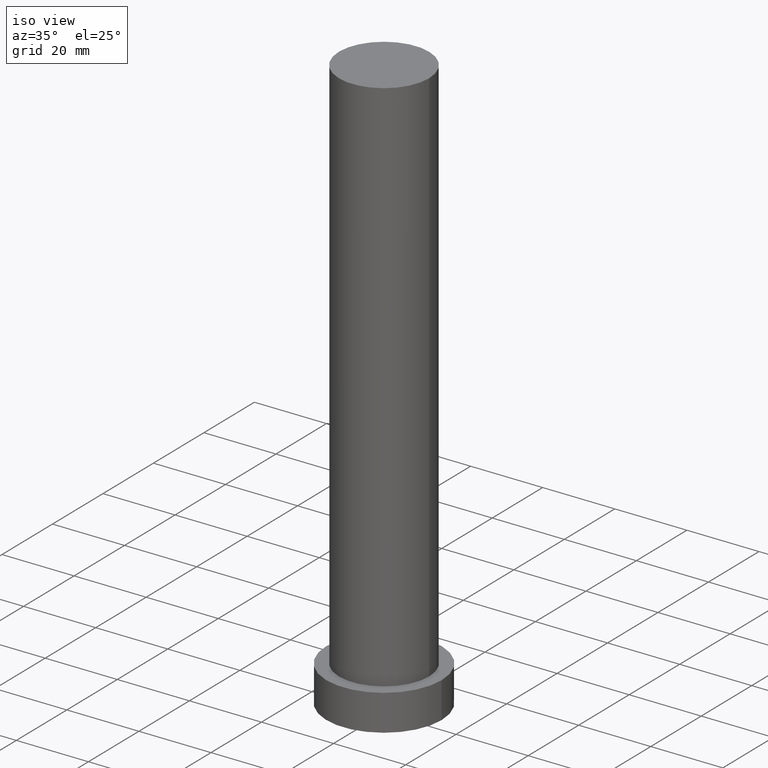
[diagram: clean part render]
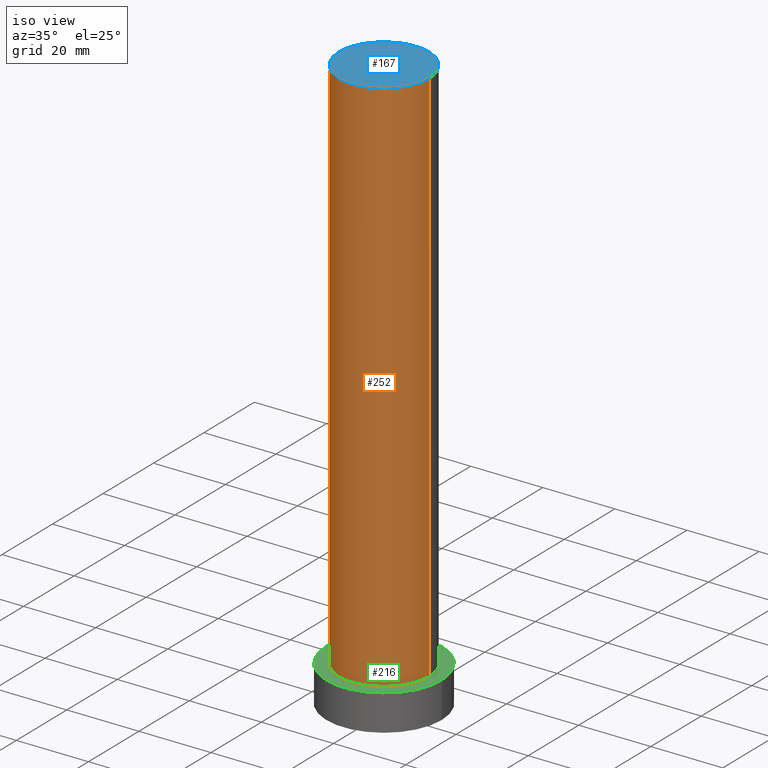
[diagram: same view with three faces highlighted in distinct colors, each labeled with its STEP entity id]
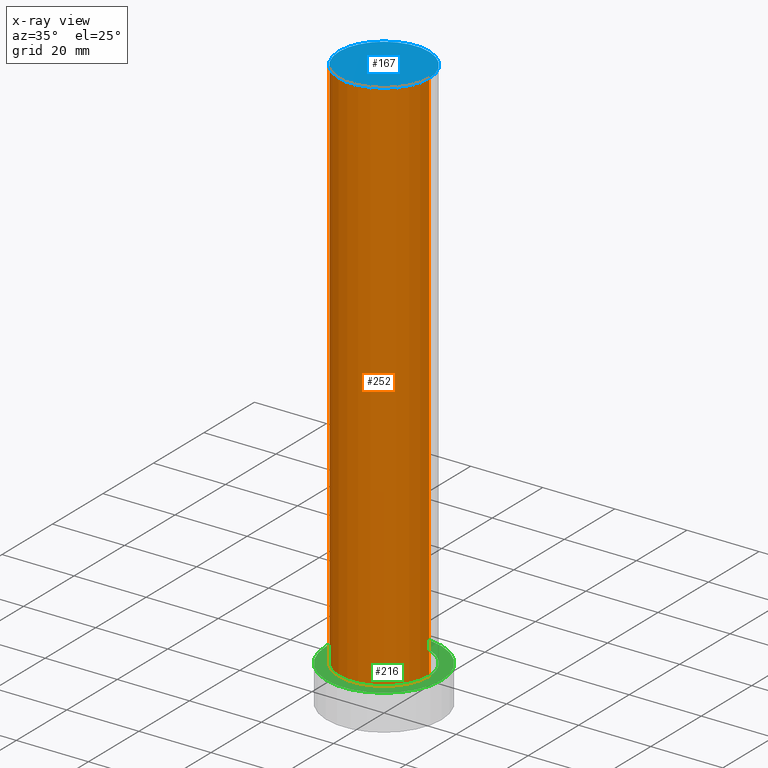
[diagram: x-ray of the same camera — body ghosted, the three highlighted faces saturated]
A machine part, iso view with three faces highlighted in distinct colors.
The next image is the same camera in x-ray (body ghosted, the three faces saturated) — at least one of them is partly hidden behind the body in this view.
Their STEP definitions:

[orange] entity #252 — the highlighted cylindrical surface (partial cylindrical patch) has radius 12.5 mm, axis along (-0, -0, -1).
#8 = CARTESIAN_POINT ( 'NONE',  ( -12.50000000000000000, 0.000000000000000000, 10.00000000000000000 ) ) ;
#16 = DIRECTION ( 'NONE',  ( 1.000000000000000000, 0.000000000000000000, 0.000000000000000000 ) ) ;
#20 = ORIENTED_EDGE ( 'NONE', *, *, #250, .F. ) ;
#22 = LINE ( 'NONE', #64, #187 ) ;
#23 = EDGE_LOOP ( 'NONE', ( #99, #20, #197, #85 ) ) ;
#26 = DIRECTION ( 'NONE',  ( 1.000000000000000000, 0.000000000000000000, 0.000000000000000000 ) ) ;
#28 = EDGE_CURVE ( 'NONE', #81, #57, #235, .T. ) ;
#40 = DIRECTION ( 'NONE',  ( 0.000000000000000000, 0.000000000000000000, 1.000000000000000000 ) ) ;
#57 = VERTEX_POINT ( 'NONE', #110 ) ;
#64 = CARTESIAN_POINT ( 'NONE',  ( 12.50000000000000000, 1.530808498934191521E-15, 160.0000000000000000 ) ) ;
#69 = DIRECTION ( 'NONE',  ( -1.000000000000000000, 0.000000000000000000, 0.000000000000000000 ) ) ;
#75 = LINE ( 'NONE', #180, #135 ) ;
#81 = VERTEX_POINT ( 'NONE', #8 ) ;
#82 = CYLINDRICAL_SURFACE ( 'NONE', #221, 12.50000000000000000 ) ;
#85 = ORIENTED_EDGE ( 'NONE', *, *, #28, .T. ) ;
#97 = EDGE_CURVE ( 'NONE', #214, #81, #75, .T. ) ;
#99 = ORIENTED_EDGE ( 'NONE', *, *, #185, .F. ) ;
#110 = CARTESIAN_POINT ( 'NONE',  ( 12.50000000000000000, 1.530808498934191521E-15, 10.00000000000000000 ) ) ;
#116 = DIRECTION ( 'NONE',  ( -0.000000000000000000, -0.000000000000000000, -1.000000000000000000 ) ) ;
#117 = CIRCLE ( 'NONE', #188, 12.50000000000000000 ) ;
#119 = CARTESIAN_POINT ( 'NONE',  ( -12.50000000000000000, 0.000000000000000000, 160.0000000000000000 ) ) ;
#122 = VERTEX_POINT ( 'NONE', #129 ) ;
#129 = CARTESIAN_POINT ( 'NONE',  ( 12.50000000000000000, 1.530808498934191521E-15, 160.0000000000000000 ) ) ;
#132 = DIRECTION ( 'NONE',  ( -0.000000000000000000, -0.000000000000000000, -1.000000000000000000 ) ) ;
#135 = VECTOR ( 'NONE', #160, 1000.000000000000000 ) ;
#147 = CARTESIAN_POINT ( 'NONE',  ( 0.000000000000000000, 0.000000000000000000, 160.0000000000000000 ) ) ;
#160 = DIRECTION ( 'NONE',  ( -0.000000000000000000, -0.000000000000000000, -1.000000000000000000 ) ) ;
#163 = AXIS2_PLACEMENT_3D ( 'NONE', #171, #224, #26 ) ;
#171 = CARTESIAN_POINT ( 'NONE',  ( 0.000000000000000000, 0.000000000000000000, 10.00000000000000000 ) ) ;
#172 = FACE_OUTER_BOUND ( 'NONE', #23, .T. ) ;
#180 = CARTESIAN_POINT ( 'NONE',  ( -12.50000000000000000, 0.000000000000000000, 160.0000000000000000 ) ) ;
#185 = EDGE_CURVE ( 'NONE', #122, #57, #22, .T. ) ;
#187 = VECTOR ( 'NONE', #116, 1000.000000000000000 ) ;
#188 = AXIS2_PLACEMENT_3D ( 'NONE', #147, #40, #16 ) ;
#197 = ORIENTED_EDGE ( 'NONE', *, *, #97, .T. ) ;
#214 = VERTEX_POINT ( 'NONE', #119 ) ;
#221 = AXIS2_PLACEMENT_3D ( 'NONE', #244, #132, #69 ) ;
#224 = DIRECTION ( 'NONE',  ( 0.000000000000000000, 0.000000000000000000, 1.000000000000000000 ) ) ;
#235 = CIRCLE ( 'NONE', #163, 12.50000000000000000 ) ;
#244 = CARTESIAN_POINT ( 'NONE',  ( 0.000000000000000000, 0.000000000000000000, 160.0000000000000000 ) ) ;
#250 = EDGE_CURVE ( 'NONE', #214, #122, #117, .T. ) ;
#252 = ADVANCED_FACE ( 'NONE', ( #172 ), #82, .T. ) ;

[blue] entity #167 — the highlighted planar face has unit normal (0, 0, 1).
#14 = DIRECTION ( 'NONE',  ( 1.000000000000000000, 0.000000000000000000, -0.000000000000000000 ) ) ;
#16 = DIRECTION ( 'NONE',  ( 1.000000000000000000, 0.000000000000000000, 0.000000000000000000 ) ) ;
#36 = CARTESIAN_POINT ( 'NONE',  ( 0.000000000000000000, 0.000000000000000000, 160.0000000000000000 ) ) ;
#39 = DIRECTION ( 'NONE',  ( 1.000000000000000000, 0.000000000000000000, 0.000000000000000000 ) ) ;
#40 = DIRECTION ( 'NONE',  ( 0.000000000000000000, 0.000000000000000000, 1.000000000000000000 ) ) ;
#53 = AXIS2_PLACEMENT_3D ( 'NONE', #36, #121, #14 ) ;
#80 = ORIENTED_EDGE ( 'NONE', *, *, #207, .T. ) ;
#96 = CARTESIAN_POINT ( 'NONE',  ( 0.000000000000000000, 0.000000000000000000, 160.0000000000000000 ) ) ;
#117 = CIRCLE ( 'NONE', #188, 12.50000000000000000 ) ;
#119 = CARTESIAN_POINT ( 'NONE',  ( -12.50000000000000000, 0.000000000000000000, 160.0000000000000000 ) ) ;
#121 = DIRECTION ( 'NONE',  ( 0.000000000000000000, 0.000000000000000000, 1.000000000000000000 ) ) ;
#122 = VERTEX_POINT ( 'NONE', #129 ) ;
#129 = CARTESIAN_POINT ( 'NONE',  ( 12.50000000000000000, 1.530808498934191521E-15, 160.0000000000000000 ) ) ;
#143 = FACE_OUTER_BOUND ( 'NONE', #241, .T. ) ;
#147 = CARTESIAN_POINT ( 'NONE',  ( 0.000000000000000000, 0.000000000000000000, 160.0000000000000000 ) ) ;
#161 = ORIENTED_EDGE ( 'NONE', *, *, #250, .T. ) ;
#167 = ADVANCED_FACE ( 'NONE', ( #143 ), #213, .T. ) ;
#182 = CIRCLE ( 'NONE', #204, 12.50000000000000000 ) ;
#188 = AXIS2_PLACEMENT_3D ( 'NONE', #147, #40, #16 ) ;
#204 = AXIS2_PLACEMENT_3D ( 'NONE', #96, #231, #39 ) ;
#207 = EDGE_CURVE ( 'NONE', #122, #214, #182, .T. ) ;
#213 = PLANE ( 'NONE',  #53 ) ;
#214 = VERTEX_POINT ( 'NONE', #119 ) ;
#231 = DIRECTION ( 'NONE',  ( 0.000000000000000000, 0.000000000000000000, 1.000000000000000000 ) ) ;
#241 = EDGE_LOOP ( 'NONE', ( #161, #80 ) ) ;
#250 = EDGE_CURVE ( 'NONE', #214, #122, #117, .T. ) ;

[green] entity #216 — the highlighted planar face has unit normal (0, 0, 1).
#3 = CARTESIAN_POINT ( 'NONE',  ( -16.00000000000000000, 0.000000000000000000, 10.00000000000000000 ) ) ;
#8 = CARTESIAN_POINT ( 'NONE',  ( -12.50000000000000000, 0.000000000000000000, 10.00000000000000000 ) ) ;
#13 = EDGE_LOOP ( 'NONE', ( #60, #142 ) ) ;
#18 = CIRCLE ( 'NONE', #55, 16.00000000000000000 ) ;
#25 = EDGE_CURVE ( 'NONE', #170, #151, #18, .T. ) ;
#26 = DIRECTION ( 'NONE',  ( 1.000000000000000000, 0.000000000000000000, 0.000000000000000000 ) ) ;
#28 = EDGE_CURVE ( 'NONE', #81, #57, #235, .T. ) ;
#37 = CIRCLE ( 'NONE', #238, 16.00000000000000000 ) ;
#55 = AXIS2_PLACEMENT_3D ( 'NONE', #71, #87, #155 ) ;
#56 = DIRECTION ( 'NONE',  ( 1.000000000000000000, 0.000000000000000000, 0.000000000000000000 ) ) ;
#57 = VERTEX_POINT ( 'NONE', #110 ) ;
#58 = DIRECTION ( 'NONE',  ( 1.000000000000000000, 0.000000000000000000, -0.000000000000000000 ) ) ;
#59 = DIRECTION ( 'NONE',  ( 0.000000000000000000, 0.000000000000000000, 1.000000000000000000 ) ) ;
#60 = ORIENTED_EDGE ( 'NONE', *, *, #247, .T. ) ;
#71 = CARTESIAN_POINT ( 'NONE',  ( 0.000000000000000000, 0.000000000000000000, 10.00000000000000000 ) ) ;
#77 = CARTESIAN_POINT ( 'NONE',  ( 0.000000000000000000, 0.000000000000000000, 10.00000000000000000 ) ) ;
#81 = VERTEX_POINT ( 'NONE', #8 ) ;
#87 = DIRECTION ( 'NONE',  ( 0.000000000000000000, 0.000000000000000000, 1.000000000000000000 ) ) ;
#90 = AXIS2_PLACEMENT_3D ( 'NONE', #77, #98, #58 ) ;
#98 = DIRECTION ( 'NONE',  ( 0.000000000000000000, 0.000000000000000000, 1.000000000000000000 ) ) ;
#103 = CARTESIAN_POINT ( 'NONE',  ( 16.00000000000000000, 1.959434878635765131E-15, 10.00000000000000000 ) ) ;
#109 = EDGE_CURVE ( 'NONE', #57, #81, #211, .T. ) ;
#110 = CARTESIAN_POINT ( 'NONE',  ( 12.50000000000000000, 1.530808498934191521E-15, 10.00000000000000000 ) ) ;
#118 = FACE_BOUND ( 'NONE', #223, .T. ) ;
#140 = AXIS2_PLACEMENT_3D ( 'NONE', #232, #59, #56 ) ;
#142 = ORIENTED_EDGE ( 'NONE', *, *, #25, .T. ) ;
#151 = VERTEX_POINT ( 'NONE', #3 ) ;
#155 = DIRECTION ( 'NONE',  ( 1.000000000000000000, 0.000000000000000000, 0.000000000000000000 ) ) ;
#163 = AXIS2_PLACEMENT_3D ( 'NONE', #171, #224, #26 ) ;
#168 = ORIENTED_EDGE ( 'NONE', *, *, #28, .F. ) ;
#170 = VERTEX_POINT ( 'NONE', #103 ) ;
#171 = CARTESIAN_POINT ( 'NONE',  ( 0.000000000000000000, 0.000000000000000000, 10.00000000000000000 ) ) ;
#181 = CARTESIAN_POINT ( 'NONE',  ( 0.000000000000000000, 0.000000000000000000, 10.00000000000000000 ) ) ;
#192 = PLANE ( 'NONE',  #90 ) ;
#194 = FACE_OUTER_BOUND ( 'NONE', #13, .T. ) ;
#202 = DIRECTION ( 'NONE',  ( 0.000000000000000000, 0.000000000000000000, 1.000000000000000000 ) ) ;
#211 = CIRCLE ( 'NONE', #140, 12.50000000000000000 ) ;
#212 = ORIENTED_EDGE ( 'NONE', *, *, #109, .F. ) ;
#216 = ADVANCED_FACE ( 'NONE', ( #118, #194 ), #192, .T. ) ;
#223 = EDGE_LOOP ( 'NONE', ( #168, #212 ) ) ;
#224 = DIRECTION ( 'NONE',  ( 0.000000000000000000, 0.000000000000000000, 1.000000000000000000 ) ) ;
#232 = CARTESIAN_POINT ( 'NONE',  ( 0.000000000000000000, 0.000000000000000000, 10.00000000000000000 ) ) ;
#235 = CIRCLE ( 'NONE', #163, 12.50000000000000000 ) ;
#238 = AXIS2_PLACEMENT_3D ( 'NONE', #181, #202, #240 ) ;
#240 = DIRECTION ( 'NONE',  ( 1.000000000000000000, 0.000000000000000000, 0.000000000000000000 ) ) ;
#247 = EDGE_CURVE ( 'NONE', #151, #170, #37, .T. ) ;